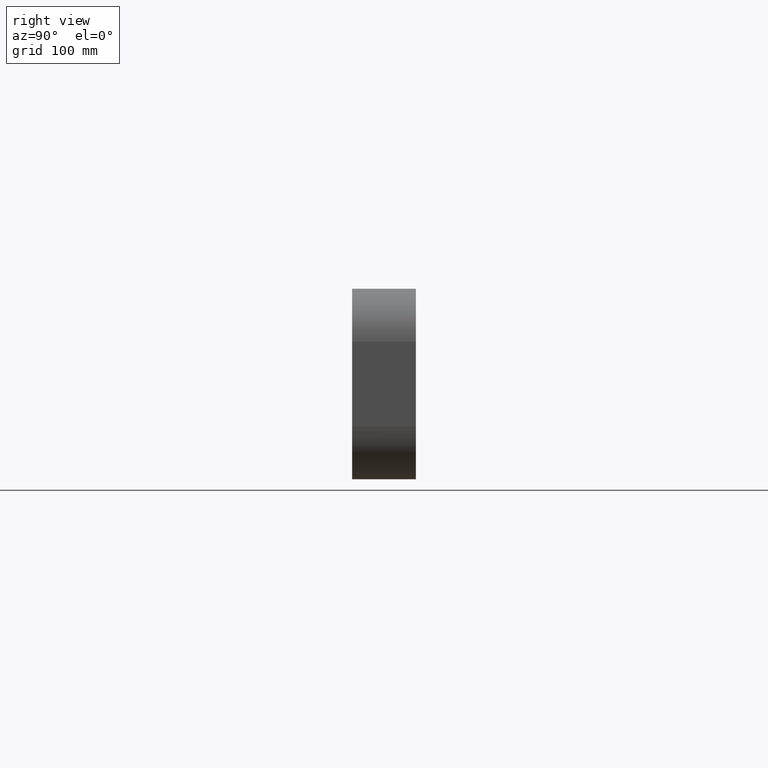
[diagram: clean part render]
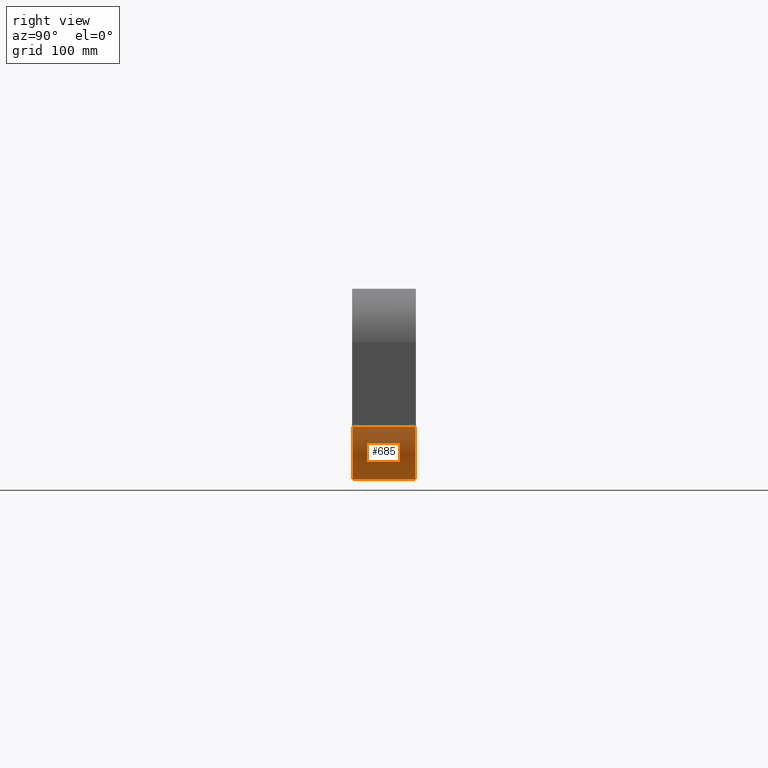
[diagram: same view with one face highlighted and labeled with its STEP entity id]
A machine part, right view. The second image highlights one B-rep face of the part: STEP entity #685.
In plain terms, the highlighted cylindrical surface (partial cylindrical patch) has radius 50 mm, axis along (0, 1, 0).
Its self-contained STEP definition (entity closure, byte-faithful):
#644=CARTESIAN_POINT('',(281.25,0.0,-39.750000000000014));
#645=DIRECTION('',(0.0,1.0,0.0));
#646=DIRECTION('',(0.707106781186547,0.0,-0.707106781186547));
#647=AXIS2_PLACEMENT_3D('',#644,#645,#646);
#648=CYLINDRICAL_SURFACE('',#647,49.999999999999993);
#649=CARTESIAN_POINT('',(281.25,57.0,-89.750000000000014));
#650=VERTEX_POINT('',#649);
#651=CARTESIAN_POINT('',(331.25,57.0,-39.750000000000014));
#652=VERTEX_POINT('',#651);
#653=CARTESIAN_POINT('',(281.25,57.0,-39.750000000000014));
#654=DIRECTION('',(0.0,-1.0,0.0));
#655=DIRECTION('',(0.707106781186547,0.0,-0.707106781186547));
#656=AXIS2_PLACEMENT_3D('',#653,#654,#655);
#657=CIRCLE('',#656,49.999999999999986);
#658=EDGE_CURVE('',#650,#652,#657,.T.);
#659=ORIENTED_EDGE('',*,*,#658,.T.);
#660=CARTESIAN_POINT('',(331.25,-3.0,-39.750000000000014));
#661=VERTEX_POINT('',#660);
#662=CARTESIAN_POINT('',(331.25,57.0,-39.750000000000014));
#663=DIRECTION('',(0.0,-1.0,0.0));
#664=VECTOR('',#663,60.0);
#665=LINE('',#662,#664);
#666=EDGE_CURVE('',#652,#661,#665,.T.);
#667=ORIENTED_EDGE('',*,*,#666,.T.);
#668=CARTESIAN_POINT('',(281.25,-3.0,-89.750000000000014));
#669=VERTEX_POINT('',#668);
#670=CARTESIAN_POINT('',(281.25,-3.0,-39.750000000000014));
#671=DIRECTION('',(0.0,1.0,0.0));
#672=DIRECTION('',(0.707106781186547,0.0,-0.707106781186547));
#673=AXIS2_PLACEMENT_3D('',#670,#671,#672);
#674=CIRCLE('',#673,49.999999999999986);
#675=EDGE_CURVE('',#661,#669,#674,.T.);
#676=ORIENTED_EDGE('',*,*,#675,.T.);
#677=CARTESIAN_POINT('',(281.25,-3.0,-89.750000000000014));
#678=DIRECTION('',(0.0,1.0,0.0));
#679=VECTOR('',#678,60.0);
#680=LINE('',#677,#679);
#681=EDGE_CURVE('',#669,#650,#680,.T.);
#682=ORIENTED_EDGE('',*,*,#681,.T.);
#683=EDGE_LOOP('',(#659,#667,#676,#682));
#684=FACE_OUTER_BOUND('',#683,.T.);
#685=ADVANCED_FACE('',(#684),#648,.T.);